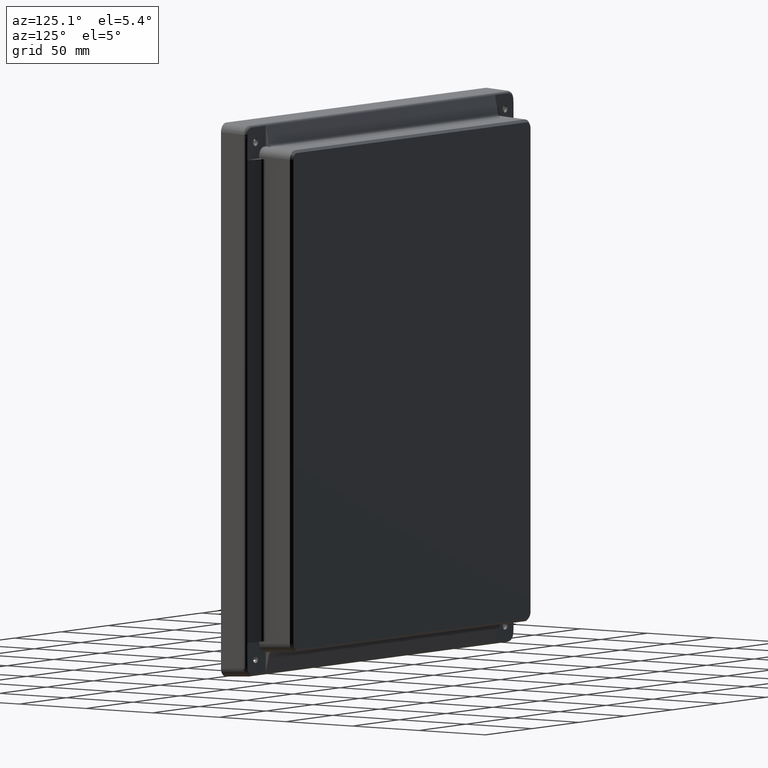
[diagram: clean part render]
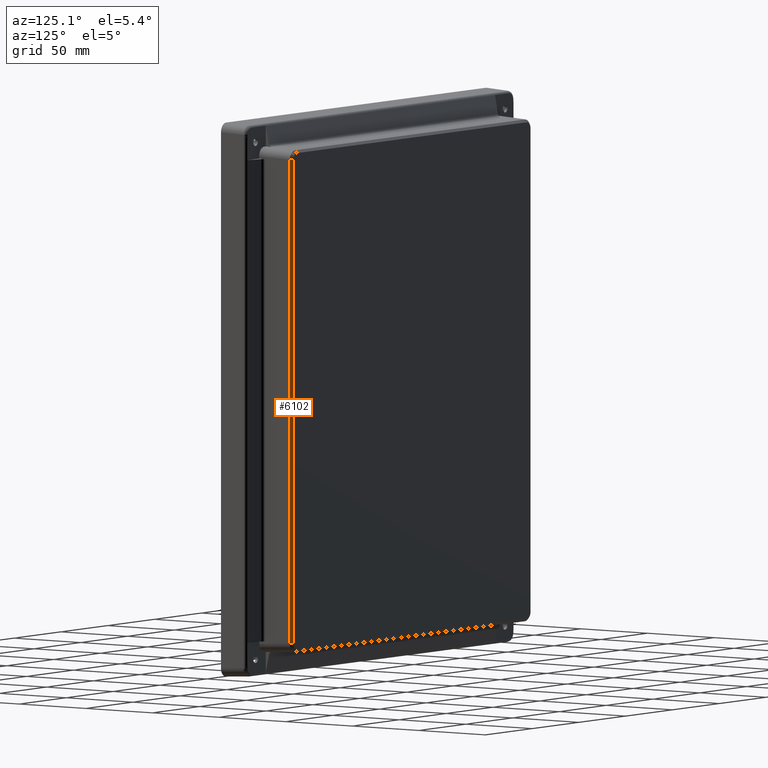
[diagram: same view with one face highlighted and labeled with its STEP entity id]
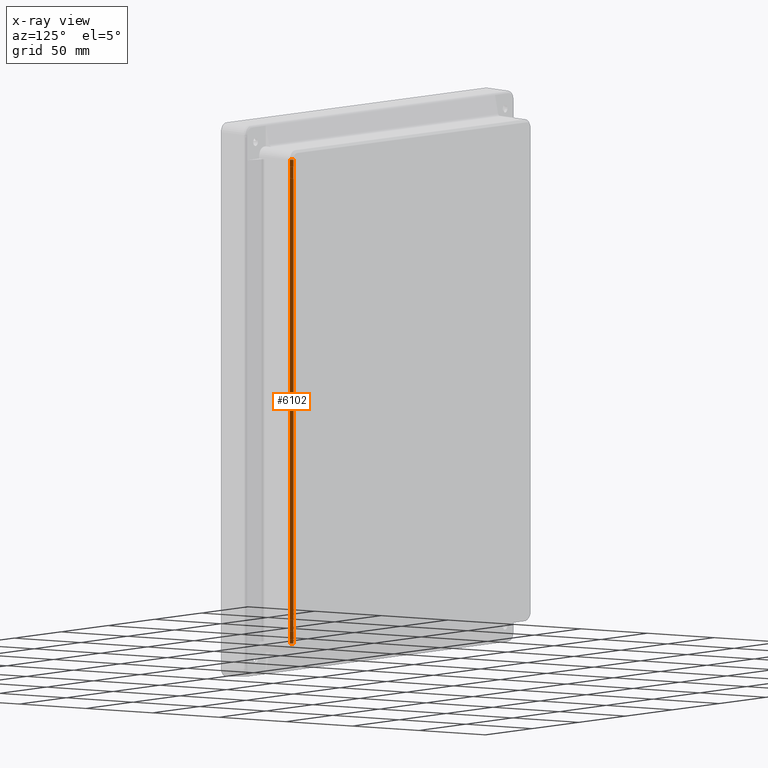
[diagram: x-ray of the same camera — body ghosted, the highlighted face saturated]
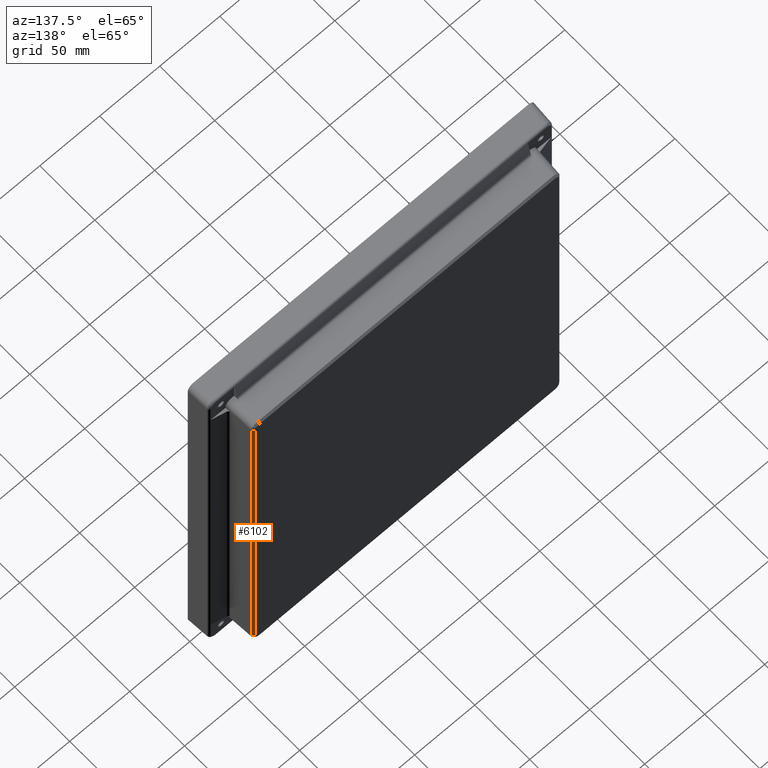
[diagram: same view with one face highlighted and labeled with its STEP entity id]
A machine part, auxiliary view. The second image highlights one B-rep face of the part: STEP entity #6102.
The next image is the same camera in x-ray: the body ghosted, the highlighted face saturated — about 0% of this face is hidden behind the body in this view.
A second angle (auxiliary view) of the same face is appended — the face is thin or edge-on in the first view.
In plain terms, the highlighted planar face has unit normal (-0.6691, -0.7431, 0).
Its self-contained STEP definition (entity closure, byte-faithful):
#141 = CARTESIAN_POINT ( 'NONE',  ( 128.2966394387411000, 32.50205569786816500, -149.3041769975908700 ) ) ;
#188 = AXIS2_PLACEMENT_3D ( 'NONE', #5543, #4056, #2645 ) ;
#382 = CARTESIAN_POINT ( 'NONE',  ( 128.2966394387411800, 32.50205569786816500, 149.3041769975909000 ) ) ;
#1044 = CARTESIAN_POINT ( 'NONE',  ( 127.7420942092529000, 33.00137046524544400, 149.3041769975909000 ) ) ;
#1108 = PLANE ( 'NONE',  #188 ) ;
#1158 = VECTOR ( 'NONE', #4732, 1000.000000000000000 ) ;
#1236 = CARTESIAN_POINT ( 'NONE',  ( 126.6330037502763000, 34.00000000000000000, -149.3041769975908200 ) ) ;
#1832 = EDGE_CURVE ( 'NONE', #5022, #5002, #2088, .T. ) ;
#1981 = CARTESIAN_POINT ( 'NONE',  ( 126.6330037502765000, 34.00000000000000000, 149.3041769975908700 ) ) ;
#2088 = B_SPLINE_CURVE_WITH_KNOTS ( 'NONE', 3,
 ( #1981, #2470, #1044, #6308 ),
 .UNSPECIFIED., .F., .F.,
 ( 4, 4 ),
 ( 0.0000000000000000000, 1.000000000000000000 ),
 .UNSPECIFIED. ) ;
#2145 = CARTESIAN_POINT ( 'NONE',  ( 126.6330037502763000, 34.00000000000000000, -149.2256730632264200 ) ) ;
#2470 = CARTESIAN_POINT ( 'NONE',  ( 127.1875489797646400, 33.50068523262272200, 149.3041769975909000 ) ) ;
#2607 = LINE ( 'NONE', #3307, #1158 ) ;
#2645 = DIRECTION ( 'NONE',  ( 0.7431448254774041300, -0.6691306063588472500, 0.0000000000000000000 ) ) ;
#2806 = ORIENTED_EDGE ( 'NONE', *, *, #6098, .F. ) ;
#2970 = CARTESIAN_POINT ( 'NONE',  ( 126.6330037502765000, 34.00000000000000000, 149.3041769975908700 ) ) ;
#3087 = DIRECTION ( 'NONE',  ( -2.660278812999576700E-016, 0.0000000000000000000, -1.000000000000000000 ) ) ;
#3307 = CARTESIAN_POINT ( 'NONE',  ( 128.2966394387411500, 32.50205569786815100, 149.2256730632263700 ) ) ;
#3366 = FACE_OUTER_BOUND ( 'NONE', #4264, .T. ) ;
#3802 = EDGE_CURVE ( 'NONE', #6186, #5002, #2607, .T. ) ;
#3988 = CARTESIAN_POINT ( 'NONE',  ( 128.2966394387411000, 32.50205569786816500, -149.3041769975908700 ) ) ;
#4056 = DIRECTION ( 'NONE',  ( -0.6691306063588472500, -0.7431448254774041300, 1.780073975226001100E-016 ) ) ;
#4135 = B_SPLINE_CURVE_WITH_KNOTS ( 'NONE', 1,
 ( #5038, #3988 ),
 .UNSPECIFIED., .F., .F.,
 ( 2, 2 ),
 ( 0.0000000000000000000, 1.000000000000000000 ),
 .UNSPECIFIED. ) ;
#4264 = EDGE_LOOP ( 'NONE', ( #6099, #5734, #5033, #2806 ) ) ;
#4295 = VERTEX_POINT ( 'NONE', #1236 ) ;
#4732 = DIRECTION ( 'NONE',  ( 2.660278812999576700E-016, 2.144099633852935700E-033, 1.000000000000000000 ) ) ;
#5002 = VERTEX_POINT ( 'NONE', #382 ) ;
#5022 = VERTEX_POINT ( 'NONE', #2970 ) ;
#5033 = ORIENTED_EDGE ( 'NONE', *, *, #6093, .F. ) ;
#5038 = CARTESIAN_POINT ( 'NONE',  ( 126.6330037502763000, 34.00000000000000000, -149.3041769975908200 ) ) ;
#5191 = LINE ( 'NONE', #2145, #5420 ) ;
#5420 = VECTOR ( 'NONE', #3087, 1000.000000000000000 ) ;
#5543 = CARTESIAN_POINT ( 'NONE',  ( 126.6330037502763900, 34.00000000000000000, 156.4999999999999400 ) ) ;
#5734 = ORIENTED_EDGE ( 'NONE', *, *, #3802, .F. ) ;
#6093 = EDGE_CURVE ( 'NONE', #4295, #6186, #4135, .T. ) ;
#6098 = EDGE_CURVE ( 'NONE', #5022, #4295, #5191, .T. ) ;
#6099 = ORIENTED_EDGE ( 'NONE', *, *, #1832, .T. ) ;
#6102 = ADVANCED_FACE ( 'NONE', ( #3366 ), #1108, .F. ) ;
#6186 = VERTEX_POINT ( 'NONE', #141 ) ;
#6308 = CARTESIAN_POINT ( 'NONE',  ( 128.2966394387411800, 32.50205569786816500, 149.3041769975909000 ) ) ;